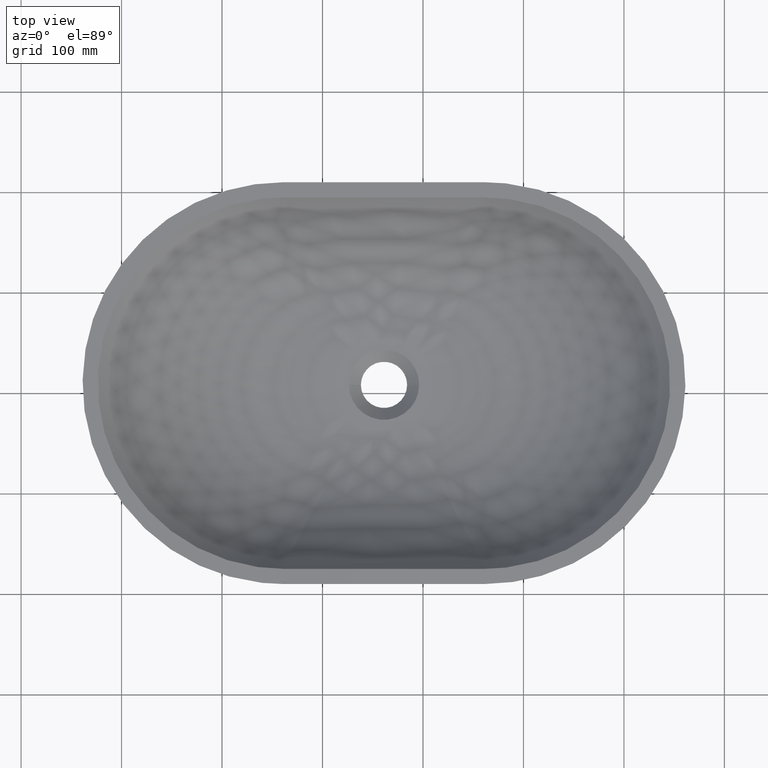
[diagram: clean part render]
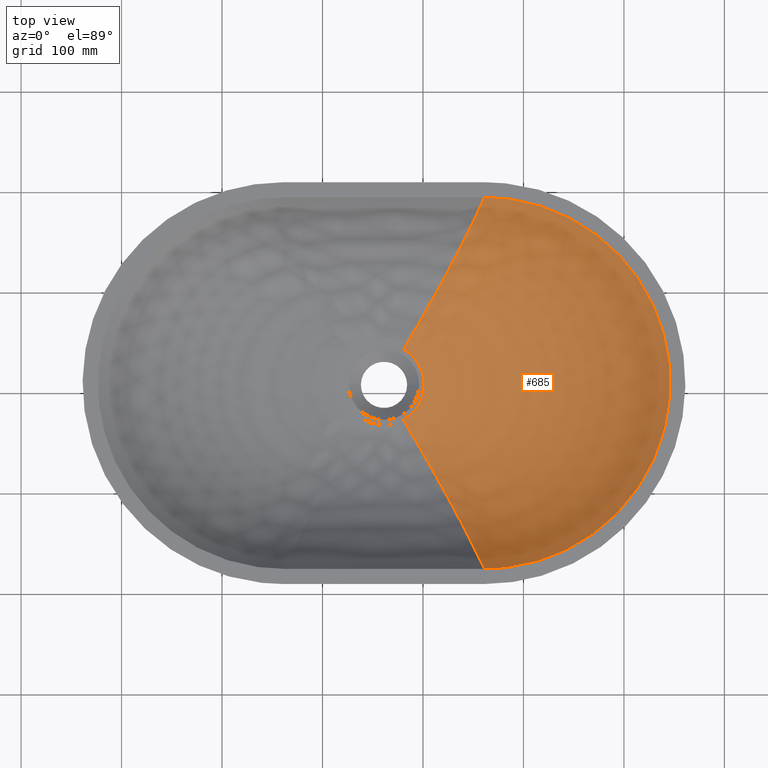
[diagram: same view with one face highlighted and labeled with its STEP entity id]
A machine part, top view. The second image highlights one B-rep face of the part: STEP entity #685.
In plain terms, the highlighted face is a freeform B-spline surface patch.
Its self-contained STEP definition (entity closure, byte-faithful):
#9 = CARTESIAN_POINT ( 'NONE',  ( 196.6014776786418800, 27.19450150109053900, 27.38179570953521100 ) ) ;
#13 = CARTESIAN_POINT ( 'NONE',  ( 197.4111516402810800, 25.57470586209854000, 27.38179570953520100 ) ) ;
#19 = CARTESIAN_POINT ( 'NONE',  ( 185.6887685744725000, -23.15208942729236700, 27.38179570953520800 ) ) ;
#21 = CARTESIAN_POINT ( 'NONE',  ( 183.7565446814714100, -24.55060546163884900, 27.38179570953520400 ) ) ;
#24 = CARTESIAN_POINT ( 'NONE',  ( 184.8060584103677100, -23.80402265204842000, 27.38179570953520800 ) ) ;
#28 = CARTESIAN_POINT ( 'NONE',  ( 198.1975356452472000, 23.69148438487925600, 27.38179570953521100 ) ) ;
#42 = CARTESIAN_POINT ( 'NONE',  ( 379.2194499832172600, 152.7235384807863500, 115.2427286380643900 ) ) ;
#47 = CARTESIAN_POINT ( 'NONE',  ( 182.5078206989634900, -25.38377603097045600, 27.38179570953520400 ) ) ;
#55 = CARTESIAN_POINT ( 'NONE',  ( 192.7707658098549900, -16.19590271109590100, 27.38179570953520400 ) ) ;
#58 = CARTESIAN_POINT ( 'NONE',  ( 261.1448278554648800, 193.3659434360993400, 115.1817957095353500 ) ) ;
#63 = CARTESIAN_POINT ( 'NONE',  ( 192.3389698053424600, -16.61992977274289300, 27.38179570953521500 ) ) ;
#65 = CARTESIAN_POINT ( 'NONE',  ( 200.6447708169336900, 1.824552117183471300, 27.38179570953520400 ) ) ;
#72 = CARTESIAN_POINT ( 'NONE',  ( 197.5197906649049200, 25.46918186683544100, 27.38179570953519700 ) ) ;
#74 = CARTESIAN_POINT ( 'NONE',  ( 389.3046865872454400, -35.32089418878769700, 54.30835634986095100 ) ) ;
#78 = CARTESIAN_POINT ( 'NONE',  ( 293.0523801231298600, -52.03174118988258100, 25.02137870701792700 ) ) ;
#94 = CARTESIAN_POINT ( 'NONE',  ( 259.6596879334414300, -139.4725213121279200, 54.30835634986097200 ) ) ;
#102 = CARTESIAN_POINT ( 'NONE',  ( 197.5198834027187600, -8.495078744145454100, 27.38179570953520400 ) ) ;
#123 = EDGE_CURVE ( 'NONE', #1524, #700, #1468, .T. ) ;
#147 = CARTESIAN_POINT ( 'NONE',  ( 180.6530092009378200, 43.43777836800070000, 27.38179570953520800 ) ) ;
#149 = CARTESIAN_POINT ( 'NONE',  ( 200.5761639955111100, 0.8717913495240085000, 27.38179570953520400 ) ) ;
#161 = CARTESIAN_POINT ( 'NONE',  ( 198.2815829386798000, 23.48531775288084200, 27.38179570953520400 ) ) ;
#162 = CARTESIAN_POINT ( 'NONE',  ( 220.4383936021591500, -89.42368401091738400, 25.02137870701793100 ) ) ;
#172 = CARTESIAN_POINT ( 'NONE',  ( 205.5522561176397300, 85.74235568824542500, 25.79786457957205300 ) ) ;
#180 = CARTESIAN_POINT ( 'NONE',  ( 200.9149258099501500, 13.24943260209434100, 27.38179570953520100 ) ) ;
#187 = CARTESIAN_POINT ( 'NONE',  ( 186.2049054703495600, 39.71304414877115400, 27.38179570953520400 ) ) ;
#190 = CARTESIAN_POINT ( 'NONE',  ( 200.7627162822613200, 2.586894052209324400, 27.38179570953520800 ) ) ;
#193 = CARTESIAN_POINT ( 'NONE',  ( 200.3713623234217800, 0.3073877213286375600, 27.38179570953520400 ) ) ;
#200 = CARTESIAN_POINT ( 'NONE',  ( 200.8169993195679700, 2.969004953996856200, 27.38179570953520800 ) ) ;
#214 = CARTESIAN_POINT ( 'NONE',  ( 187.3605936581501800, 38.89741619271493500, 27.38179570953521500 ) ) ;
#227 = EDGE_LOOP ( 'NONE', ( #1410, #557, #993, #508 ) ) ;
#231 = CARTESIAN_POINT ( 'NONE',  ( 439.1169840143039700, -46.00775472636006900, 115.2427286380643800 ) ) ;
#245 = CARTESIAN_POINT ( 'NONE',  ( 200.0726963640857200, -0.9801483764951626200, 27.38179570953521100 ) ) ;
#255 = CARTESIAN_POINT ( 'NONE',  ( 279.3422297902220600, -176.1039418566433000, 115.2427286380643900 ) ) ;
#287 = CARTESIAN_POINT ( 'NONE',  ( 259.6622617641647300, 156.4450043900232900, 54.30835634986096500 ) ) ;
#290 = CARTESIAN_POINT ( 'NONE',  ( 199.3152058214651300, -3.974982978294283600, 27.38179570953521100 ) ) ;
#291 = VERTEX_POINT ( 'NONE', #1472 ) ;
#294 = B_SPLINE_CURVE_WITH_KNOTS ( 'NONE', 3,
 ( #147, #172, #1056, #1160, #1243, #58 ),
 .UNSPECIFIED., .F., .F.,
 ( 4, 2, 4 ),
 ( 0.0000000000000000000, 0.6712624762246683900, 1.000000000000000000 ),
 .UNSPECIFIED. ) ;
#296 = CARTESIAN_POINT ( 'NONE',  ( 195.2956372939060300, -12.59114986568220800, 27.38179570953521100 ) ) ;
#300 = CARTESIAN_POINT ( 'NONE',  ( 323.8246753876478000, -118.7234972144845500, 54.30835634986110700 ) ) ;
#304 = CARTESIAN_POINT ( 'NONE',  ( 265.9041877506471100, -176.3919539004494700, 115.1817957095352400 ) ) ;
#314 = CARTESIAN_POINT ( 'NONE',  ( 183.5971306888304200, 41.67277403727020900, 27.38179570953520800 ) ) ;
#318 = CARTESIAN_POINT ( 'NONE',  ( 180.6530092009378700, -26.46353534714632300, 27.38179570953520800 ) ) ;
#329 = CARTESIAN_POINT ( 'NONE',  ( 180.6530092009378200, 43.43777836800070000, 27.38179570953520800 ) ) ;
#334 = CARTESIAN_POINT ( 'NONE',  ( 180.6530092009378200, 43.43777836800070000, 27.38179570953520800 ) ) ;
#347 = CARTESIAN_POINT ( 'NONE',  ( 425.1962089026555400, -79.18575149508822600, 115.1817957095352200 ) ) ;
#350 = CARTESIAN_POINT ( 'NONE',  ( 189.6575093727617500, -19.63638992750179900, 27.38179570953520400 ) ) ;
#352 = CARTESIAN_POINT ( 'NONE',  ( 181.4983203643700400, -25.99302798149500000, 27.38179570953521100 ) ) ;
#358 = CARTESIAN_POINT ( 'NONE',  ( 362.5495875228631900, 102.2134134446983000, 54.30835634986096500 ) ) ;
#366 = CARTESIAN_POINT ( 'NONE',  ( 184.3711085017826000, -24.11875589118188800, 27.38179570953520100 ) ) ;
#396 = CARTESIAN_POINT ( 'NONE',  ( 185.2886836203347800, 40.42013146573546600, 27.38179570953520100 ) ) ;
#409 = CARTESIAN_POINT ( 'NONE',  ( 196.1418425925184600, -11.00220248208325400, 27.38179570953520400 ) ) ;
#424 = CARTESIAN_POINT ( 'NONE',  ( 279.3225402225500600, -176.0673003552144600, 115.1817957095352500 ) ) ;
#438 = CARTESIAN_POINT ( 'NONE',  ( 425.2433722258715000, -79.20295678382918000, 115.2427286380643600 ) ) ;
#443 = CARTESIAN_POINT ( 'NONE',  ( 227.7312803196107900, 106.0032753629035700, 25.02137870701792400 ) ) ;
#468 = CARTESIAN_POINT ( 'NONE',  ( 183.5527860050896700, 41.74551480386342900, 27.38179570953520100 ) ) ;
#485 = CARTESIAN_POINT ( 'NONE',  ( 190.0864540001017000, -19.27255901435651000, 27.38179570953521100 ) ) ;
#494 = CARTESIAN_POINT ( 'NONE',  ( 217.7585402813497200, 106.4812034904919400, 25.02137870701793100 ) ) ;
#505 = CARTESIAN_POINT ( 'NONE',  ( 184.6759408692024900, -23.89901503450563400, 27.38179570953520400 ) ) ;
#508 = ORIENTED_EDGE ( 'NONE', *, *, #649, .F. ) ;
#510 = CARTESIAN_POINT ( 'NONE',  ( 200.0380332305060200, 18.05945750227263200, 27.38179570953520400 ) ) ;
#517 = CARTESIAN_POINT ( 'NONE',  ( 262.1700796277140200, 95.48749348739411900, 25.02137870701792000 ) ) ;
#530 = CARTESIAN_POINT ( 'NONE',  ( 200.8612603138843200, 3.298482154612084800, 27.38179570953520800 ) ) ;
#533 = CARTESIAN_POINT ( 'NONE',  ( 446.3857256865616700, 26.97803776902222200, 115.2427286380643800 ) ) ;
#534 = CARTESIAN_POINT ( 'NONE',  ( 383.0494266036511700, -131.7894746285706700, 115.2427286380643800 ) ) ;
#535 = CARTESIAN_POINT ( 'NONE',  ( 196.7900977674558800, -9.808557677217605100, 27.38179570953519000 ) ) ;
#539 = CARTESIAN_POINT ( 'NONE',  ( 378.0964865647901000, -62.00286483470746600, 54.30835634986097200 ) ) ;
#556 = CARTESIAN_POINT ( 'NONE',  ( 197.9336127222025500, -7.344268548536906100, 27.38179570953521100 ) ) ;
#557 = ORIENTED_EDGE ( 'NONE', *, *, #123, .F. ) ;
#561 = CARTESIAN_POINT ( 'NONE',  ( 188.9308521093734900, -20.33937161964875200, 27.38179570953520400 ) ) ;
#566 = CARTESIAN_POINT ( 'NONE',  ( 227.7298563202850800, -89.02967392048088900, 25.02137870701793100 ) ) ;
#570 = CARTESIAN_POINT ( 'NONE',  ( 261.1614004858080300, -176.4286436027718100, 115.2427286380643800 ) ) ;
#582 = CARTESIAN_POINT ( 'NONE',  ( 248.5789202161286400, -139.5737906297593700, 54.30835634986105700 ) ) ;
#596 = CARTESIAN_POINT ( 'NONE',  ( 362.5503774578930900, -85.24075731403452500, 54.30835634986103600 ) ) ;
#603 = CARTESIAN_POINT ( 'NONE',  ( 389.3022479116495400, 52.29376907120254000, 54.30835634986104300 ) ) ;
#625 = EDGE_CURVE ( 'NONE', #700, #291, #294, .T. ) ;
#628 = CARTESIAN_POINT ( 'NONE',  ( 199.7267865206681300, -2.266310874729762200, 27.38179570953520400 ) ) ;
#647 = CARTESIAN_POINT ( 'NONE',  ( 199.6357805134790100, -2.590655510195713200, 27.38179570953519400 ) ) ;
#648 = CARTESIAN_POINT ( 'NONE',  ( 279.3454003649030700, 193.0762527380919900, 115.2427286380643800 ) ) ;
#649 = EDGE_CURVE ( 'NONE', #291, #1388, #815, .T. ) ;
#658 = CARTESIAN_POINT ( 'NONE',  ( 186.7250462988745600, -22.33167545168174300, 27.38179570953520400 ) ) ;
#661 = CARTESIAN_POINT ( 'NONE',  ( 201.0371291942463800, 12.12911935696265800, 27.38179570953521100 ) ) ;
#669 = CARTESIAN_POINT ( 'NONE',  ( 186.9376532413858700, -22.23953747951132000, 27.38179570953521100 ) ) ;
#674 = CARTESIAN_POINT ( 'NONE',  ( 193.5789856733868200, 31.97993811877862700, 27.38179570953520800 ) ) ;
#680 = CARTESIAN_POINT ( 'NONE',  ( 217.7461699221338200, -89.48594285333409500, 25.02216563029785600 ) ) ;
#685 = ADVANCED_FACE ( 'NONE', ( #849 ), #1161, .F. ) ;
#690 = CARTESIAN_POINT ( 'NONE',  ( 261.1448278554647100, -176.3917004152449700, 115.1817957095353900 ) ) ;
#692 = CARTESIAN_POINT ( 'NONE',  ( 439.0648198194157300, 62.96958976007968500, 115.1817957095351900 ) ) ;
#700 = VERTEX_POINT ( 'NONE', #334 ) ;
#703 = CARTESIAN_POINT ( 'NONE',  ( 309.7899828680299900, 36.66707738275332700, 25.02137870701792400 ) ) ;
#708 = CARTESIAN_POINT ( 'NONE',  ( 293.0529928756049000, 69.00341743924133200, 25.02137870701792000 ) ) ;
#713 = CARTESIAN_POINT ( 'NONE',  ( 446.3344963352358300, 26.97441046883320900, 115.1817957095352400 ) ) ;
#727 = CARTESIAN_POINT ( 'NONE',  ( 200.5759918676284000, 16.10237721356336800, 27.38179570953520100 ) ) ;
#737 = CARTESIAN_POINT ( 'NONE',  ( 200.8818420545889300, 13.51592951334062900, 27.38179570953521100 ) ) ;
#743 = CARTESIAN_POINT ( 'NONE',  ( 358.1473053572506700, -149.8167725658331100, 115.1817957095352200 ) ) ;
#746 = CARTESIAN_POINT ( 'NONE',  ( 268.6868102510666200, -74.17294108672561500, 25.02137870701792700 ) ) ;
#747 = CARTESIAN_POINT ( 'NONE',  ( 197.4741953974441600, -8.379635219901972600, 27.38179570953520400 ) ) ;
#750 = CARTESIAN_POINT ( 'NONE',  ( 200.8952048879166100, 13.40933867330464000, 27.38179570953520800 ) ) ;
#754 = CARTESIAN_POINT ( 'NONE',  ( 395.1707953075338100, -6.376679067864068400, 54.30835634986106400 ) ) ;
#757 = CARTESIAN_POINT ( 'NONE',  ( 343.9709374917975400, -104.2467259528659300, 54.30835634986094400 ) ) ;
#774 = CARTESIAN_POINT ( 'NONE',  ( 189.3329063772969200, 36.92136624550906300, 27.38179570953520800 ) ) ;
#775 = B_SPLINE_CURVE_WITH_KNOTS ( 'NONE', 3,
 ( #318, #680, #1527, #1525 ),
 .UNSPECIFIED., .F., .F.,
 ( 4, 4 ),
 ( 0.0000000000000000000, 1.000000000000000000 ),
 .UNSPECIFIED. ) ;
#779 = CARTESIAN_POINT ( 'NONE',  ( 194.4948221238040800, 30.68724613975218700, 27.38179570953521100 ) ) ;
#784 = CARTESIAN_POINT ( 'NONE',  ( 199.7865637781691500, -2.049774058058631000, 27.38179570953521500 ) ) ;
#794 = CARTESIAN_POINT ( 'NONE',  ( 190.1226637806337600, 36.12386546523632800, 27.38179570953520100 ) ) ;
#806 = CARTESIAN_POINT ( 'NONE',  ( 199.6131475044422000, 19.67530492797540000, 27.38179570953521100 ) ) ;
#807 = CARTESIAN_POINT ( 'NONE',  ( 181.4038921278672900, -26.04558753911360500, 27.38179570953521500 ) ) ;
#810 = CARTESIAN_POINT ( 'NONE',  ( 185.0223280056100600, 40.61904187335757400, 27.38179570953520100 ) ) ;
#815 = B_SPLINE_CURVE_WITH_KNOTS ( 'NONE', 3,
 ( #1367, #890, #1082, #1202, #1140, #1269, #1251, #1363, #692, #713, #1079, #1330, #347, #1457, #925, #743, #1205, #905, #424, #304, #690 ),
 .UNSPECIFIED., .F., .F.,
 ( 4, 1, 1, 1, 1, 1, 1, 1, 1, 1, 1, 1, 1, 1, 1, 1, 1, 1, 4 ),
 ( 0.0000000000000000000, 0.04133533060371028000, 0.08267066120742062900, 0.1240059918111309800, 0.1653413224148412600, 0.1928982094839814300, 0.2204550965531216500, 0.2480119836222618200, 0.2755688706914020700, 0.3031257577605422400, 0.3306826448296824000, 0.3582395318988226300, 0.3857964189679628500, 0.4133533060371030200, 0.4409101931062431900, 0.4684670801753834100, 0.4960239672445236300, 0.5373592978482338900, 0.5786946284519441900 ),
 .UNSPECIFIED. ) ;
#822 = CARTESIAN_POINT ( 'NONE',  ( 194.7628178722373800, -13.34796426136996500, 27.38179570953520800 ) ) ;
#825 = CARTESIAN_POINT ( 'NONE',  ( 199.4140523168082400, -3.344235532831059100, 27.38179570953520400 ) ) ;
#828 = CARTESIAN_POINT ( 'NONE',  ( 198.0235799684431900, -7.133813220683200600, 27.38179570953520400 ) ) ;
#834 = CARTESIAN_POINT ( 'NONE',  ( 201.0888144347105100, 5.056072847339557100, 27.38179570953520400 ) ) ;
#836 = CARTESIAN_POINT ( 'NONE',  ( 201.1991881648812100, 9.346399119737737800, 27.38179570953519700 ) ) ;
#841 = CARTESIAN_POINT ( 'NONE',  ( 201.1991548304705200, 6.768566291806132000, 27.38179570953520800 ) ) ;
#844 = CARTESIAN_POINT ( 'NONE',  ( 189.5720474390210800, 36.68410459989005500, 27.38179570953520100 ) ) ;
#849 = FACE_OUTER_BOUND ( 'NONE', #227, .T. ) ;
#853 = CARTESIAN_POINT ( 'NONE',  ( 201.1578188534704700, 10.63277970569477500, 27.38179570953520400 ) ) ;
#856 = CARTESIAN_POINT ( 'NONE',  ( 200.8752364340118400, 13.56780015207234900, 27.38179570953520800 ) ) ;
#858 = CARTESIAN_POINT ( 'NONE',  ( 309.7899094286735200, -19.69369558392305900, 25.02137870701792700 ) ) ;
#866 = CARTESIAN_POINT ( 'NONE',  ( 406.0112118811169400, -108.1202913474504900, 115.2427286380643600 ) ) ;
#869 = CARTESIAN_POINT ( 'NONE',  ( 446.3823993092374300, -10.00275878739502400, 115.2427286380643400 ) ) ;
#880 = CARTESIAN_POINT ( 'NONE',  ( 425.2437389192687100, 96.18294949087230300, 115.2427286380643800 ) ) ;
#886 = CARTESIAN_POINT ( 'NONE',  ( 200.8538747076187300, 3.242321762003865300, 27.38179570953520800 ) ) ;
#890 = CARTESIAN_POINT ( 'NONE',  ( 265.9041880337533100, 193.3661968537024900, 115.1817957095352400 ) ) ;
#896 = CARTESIAN_POINT ( 'NONE',  ( 199.2224022879696300, 20.96323281230361200, 27.38179570953520400 ) ) ;
#905 = CARTESIAN_POINT ( 'NONE',  ( 305.8180387162530000, -171.7082193614270700, 115.1817957095352400 ) ) ;
#907 = CARTESIAN_POINT ( 'NONE',  ( 217.7585402813500100, -89.50696046963756200, 25.02137870701793100 ) ) ;
#912 = CARTESIAN_POINT ( 'NONE',  ( 244.5946707096401300, -139.4953298881793800, 54.30835634986100800 ) ) ;
#917 = CARTESIAN_POINT ( 'NONE',  ( 190.5928202152297500, -18.66859155576897700, 27.38179570953520400 ) ) ;
#925 = CARTESIAN_POINT ( 'NONE',  ( 383.0103344354116600, -131.7619236983447600, 115.1817957095352400 ) ) ;
#927 = CARTESIAN_POINT ( 'NONE',  ( 395.1742022714312800, 23.35184081782544000, 54.30835634986088000 ) ) ;
#944 = CARTESIAN_POINT ( 'NONE',  ( 313.4982644795584300, 142.1473177360400100, 54.30835634986102900 ) ) ;
#967 = CARTESIAN_POINT ( 'NONE',  ( 248.5792036818253300, 156.5479659543870000, 54.30835634986102200 ) ) ;
#978 = CARTESIAN_POINT ( 'NONE',  ( 439.1146495699926500, 62.98027951517251900, 115.2427286380643400 ) ) ;
#983 = CARTESIAN_POINT ( 'NONE',  ( 200.9586779989895700, 12.87617975784275400, 27.38179570953519700 ) ) ;
#993 = ORIENTED_EDGE ( 'NONE', *, *, #1354, .T. ) ;
#1002 = CARTESIAN_POINT ( 'NONE',  ( 180.6530092009378700, -26.46353534714632300, 27.38179570953520800 ) ) ;
#1003 = CARTESIAN_POINT ( 'NONE',  ( 255.8554105091100400, -81.08400325095415400, 25.02137870701792700 ) ) ;
#1012 = CARTESIAN_POINT ( 'NONE',  ( 180.6530092009378200, 43.43777836800070000, 27.38179570953521100 ) ) ;
#1017 = CARTESIAN_POINT ( 'NONE',  ( 192.4782352369080300, -16.44622379385872400, 27.38179570953521100 ) ) ;
#1024 = CARTESIAN_POINT ( 'NONE',  ( 199.9566465915439400, 18.38010190805118400, 27.38179570953520800 ) ) ;
#1029 = CARTESIAN_POINT ( 'NONE',  ( 345.4405783898705500, 174.8753092049148300, 115.2427286380643800 ) ) ;
#1033 = CARTESIAN_POINT ( 'NONE',  ( 192.7576191240098900, 33.06587221095658400, 27.38179570953520800 ) ) ;
#1035 = CARTESIAN_POINT ( 'NONE',  ( 305.8425874350387500, -171.7438259838578500, 115.2427286380643800 ) ) ;
#1040 = CARTESIAN_POINT ( 'NONE',  ( 309.1507820422887700, 188.1728444841104400, 115.2427286380643900 ) ) ;
#1056 = CARTESIAN_POINT ( 'NONE',  ( 225.8272646113798600, 122.1683338336006700, 38.46453124623863600 ) ) ;
#1059 = CARTESIAN_POINT ( 'NONE',  ( 200.7548672419667600, 14.49770678458741500, 27.38179570953520400 ) ) ;
#1062 = CARTESIAN_POINT ( 'NONE',  ( 201.2260872538069500, 5.925180911653694900, 27.38179570953520400 ) ) ;
#1072 = CARTESIAN_POINT ( 'NONE',  ( 191.4576509502985900, 34.88818144069497900, 27.38179570953519700 ) ) ;
#1077 = CARTESIAN_POINT ( 'NONE',  ( 188.6928638043057400, -20.56644444955136900, 27.38179570953520800 ) ) ;
#1079 = CARTESIAN_POINT ( 'NONE',  ( 446.3311698784637000, -9.999131604614058600, 115.1817957095351900 ) ) ;
#1082 = CARTESIAN_POINT ( 'NONE',  ( 279.3257102002136200, 193.0396114092008300, 115.1817957095352400 ) ) ;
#1090 = CARTESIAN_POINT ( 'NONE',  ( 185.0678027613790000, 40.58527842419390900, 27.38179570953520800 ) ) ;
#1095 = CARTESIAN_POINT ( 'NONE',  ( 192.0623892055198800, 33.94828256210225000, 27.38179570953520800 ) ) ;
#1115 = CARTESIAN_POINT ( 'NONE',  ( 261.1448278554647100, -176.3917004152449700, 115.1817957095353900 ) ) ;
#1116 = CARTESIAN_POINT ( 'NONE',  ( 244.5946707096398700, 156.4695729090337600, 54.30835634986100800 ) ) ;
#1119 = CARTESIAN_POINT ( 'NONE',  ( 302.7880371200877200, -36.92800928836876300, 25.02137870701793100 ) ) ;
#1120 = CARTESIAN_POINT ( 'NONE',  ( 333.2148645694177800, -162.4973830247429600, 115.2427286380643800 ) ) ;
#1125 = CARTESIAN_POINT ( 'NONE',  ( 313.4535065031587900, 18.04257563260727400, 25.02137870701793100 ) ) ;
#1130 = CARTESIAN_POINT ( 'NONE',  ( 313.4534708008882300, -1.068007605858654100, 25.02137870701792700 ) ) ;
#1132 = CARTESIAN_POINT ( 'NONE',  ( 198.6913439419372800, 22.44044034649935400, 27.38179570953520800 ) ) ;
#1137 = CARTESIAN_POINT ( 'NONE',  ( 281.3025702341002400, -136.1472725605145500, 54.30835634986110000 ) ) ;
#1140 = CARTESIAN_POINT ( 'NONE',  ( 345.4086248373045000, 174.8425716759024100, 115.1817957095352400 ) ) ;
#1148 = CARTESIAN_POINT ( 'NONE',  ( 182.1550870197657200, 42.60170910958645200, 27.38179570953520400 ) ) ;
#1160 = CARTESIAN_POINT ( 'NONE',  ( 249.1426898363959000, 167.6756875922566800, 78.56399370194640100 ) ) ;
#1161 = B_SPLINE_SURFACE_WITH_KNOTS ( 'NONE', 3, 3, ( 
 ( #1424, #907, #912, #570 ),
 ( #352, #162, #582, #1454 ),
 ( #1432, #566, #94, #255 ),
 ( #669, #1405, #1137, #1035 ),
 ( #485, #1003, #1538, #1120 ),
 ( #55, #746, #300, #1451 ),
 ( #296, #1478, #757, #534 ),
 ( #102, #78, #596, #866 ),
 ( #290, #1119, #539, #438 ),
 ( #149, #858, #74, #231 ),
 ( #1062, #1130, #754, #869 ),
 ( #1306, #1125, #927, #533 ),
 ( #727, #703, #603, #978 ),
 ( #1511, #1458, #1191, #880 ),
 ( #72, #708, #358, #1173 ),
 ( #1167, #1421, #1407, #42 ),
 ( #1072, #517, #944, #1029 ),
 ( #214, #1232, #1545, #1040 ),
 ( #468, #443, #287, #648 ),
 ( #1335, #1430, #967, #1482 ),
 ( #1012, #494, #1116, #1497 ) ),
 .UNSPECIFIED., .F., .F., .F.,
 ( 4, 1, 1, 1, 1, 1, 1, 1, 1, 1, 1, 1, 1, 1, 1, 1, 1, 1, 4 ),
 ( 4, 4 ),
 ( 0.0000000000000000000, 0.07142857142857142500, 0.1428571428571428500, 0.1904761904761904700, 0.2380952380952380800, 0.2857142857142857000, 0.3333333333333333100, 0.3809523809523809300, 0.4285714285714285500, 0.4761904761904761600, 0.5238095238095237200, 0.5714285714285714000, 0.6190476190476189600, 0.6666666666666666300, 0.7142857142857141900, 0.7857142857142855900, 0.8571428571428571000, 0.9285714285714286000, 1.000000000000000000 ),
 ( 0.0000000000000000000, 0.9992401303679722100 ),
 .UNSPECIFIED. ) ;
#1167 = CARTESIAN_POINT ( 'NONE',  ( 194.9251723252385800, 30.24895763689873000, 27.38179570953521500 ) ) ;
#1173 = CARTESIAN_POINT ( 'NONE',  ( 406.0107227344238400, 125.0918728369033800, 115.2427286380643600 ) ) ;
#1191 = CARTESIAN_POINT ( 'NONE',  ( 378.0970396123015600, 78.98217328683313100, 54.30835634986100800 ) ) ;
#1196 = CARTESIAN_POINT ( 'NONE',  ( 189.1727761962352800, 37.07890937799701400, 27.38179570953520400 ) ) ;
#1202 = CARTESIAN_POINT ( 'NONE',  ( 309.1256268442472200, 188.1373668603124300, 115.1817957095352500 ) ) ;
#1205 = CARTESIAN_POINT ( 'NONE',  ( 333.1852031347311300, -162.4637020082662400, 115.1817957095352400 ) ) ;
#1209 = CARTESIAN_POINT ( 'NONE',  ( 187.8847485334033500, -21.31598320127682200, 27.38179570953519000 ) ) ;
#1232 = CARTESIAN_POINT ( 'NONE',  ( 243.4070174597280500, 102.9464048901616700, 25.02137870701793800 ) ) ;
#1239 = CARTESIAN_POINT ( 'NONE',  ( 199.8739825910189700, 18.69848401579189500, 27.38179570953520800 ) ) ;
#1243 = CARTESIAN_POINT ( 'NONE',  ( 255.6982875608265100, 181.2257644696010700, 95.16399370194760400 ) ) ;
#1251 = CARTESIAN_POINT ( 'NONE',  ( 405.9672464215202000, 125.0689875127428900, 115.1817957095352200 ) ) ;
#1252 = CARTESIAN_POINT ( 'NONE',  ( 198.4476355950346500, 23.06809179025741200, 27.38179570953521100 ) ) ;
#1259 = CARTESIAN_POINT ( 'NONE',  ( 200.5420063811430700, 15.80217635767287200, 27.38179570953520400 ) ) ;
#1269 = CARTESIAN_POINT ( 'NONE',  ( 379.1810891621314600, 152.6952077585169400, 115.1817957095352500 ) ) ;
#1273 = CARTESIAN_POINT ( 'NONE',  ( 188.3773325744435900, 37.84913038555262700, 27.38179570953520800 ) ) ;
#1278 = CARTESIAN_POINT ( 'NONE',  ( 185.5961589681054100, 40.18686273691653100, 27.38179570953520400 ) ) ;
#1280 = CARTESIAN_POINT ( 'NONE',  ( 193.1721563109251500, 32.52421745444802800, 27.38179570953520400 ) ) ;
#1290 = CARTESIAN_POINT ( 'NONE',  ( 192.0551707817834000, -16.96793710404569900, 27.38179570953520800 ) ) ;
#1306 = CARTESIAN_POINT ( 'NONE',  ( 201.2263107752296500, 11.04912475463105700, 27.38179570953521100 ) ) ;
#1316 = CARTESIAN_POINT ( 'NONE',  ( 191.1943785875499800, 34.97687268309115900, 27.38179570953520100 ) ) ;
#1327 = CARTESIAN_POINT ( 'NONE',  ( 198.4564783497039900, -6.097188091402071700, 27.38179570953520100 ) ) ;
#1330 = CARTESIAN_POINT ( 'NONE',  ( 439.0671543671018600, -45.99706462106902200, 115.1817957095352400 ) ) ;
#1332 = CARTESIAN_POINT ( 'NONE',  ( 200.2185449134988500, 17.30946289295840800, 27.38179570953520100 ) ) ;
#1335 = CARTESIAN_POINT ( 'NONE',  ( 181.4983203643700200, 42.96727100234939200, 27.38179570953521100 ) ) ;
#1354 = EDGE_CURVE ( 'NONE', #1524, #1388, #775, .T. ) ;
#1363 = CARTESIAN_POINT ( 'NONE',  ( 425.1965757820983100, 96.16574351693498100, 115.1817957095352400 ) ) ;
#1365 = CARTESIAN_POINT ( 'NONE',  ( 189.0908742091632500, 37.15880246085357900, 27.38179570953520400 ) ) ;
#1367 = CARTESIAN_POINT ( 'NONE',  ( 261.1448278554648800, 193.3659434360993400, 115.1817957095353500 ) ) ;
#1370 = CARTESIAN_POINT ( 'NONE',  ( 184.9347884352356500, -23.70952017412908200, 27.38179570953520400 ) ) ;
#1374 = CARTESIAN_POINT ( 'NONE',  ( 185.1562437362941300, 40.51932365696063700, 27.38179570953520800 ) ) ;
#1388 = VERTEX_POINT ( 'NONE', #1115 ) ;
#1389 = CARTESIAN_POINT ( 'NONE',  ( 199.9014945013229000, 18.59369109960219300, 27.38179570953520400 ) ) ;
#1405 = CARTESIAN_POINT ( 'NONE',  ( 241.6671055760723200, -86.31097137434544200, 25.02137870701793100 ) ) ;
#1407 = CARTESIAN_POINT ( 'NONE',  ( 340.8720580100358000, 124.4012189914564200, 54.30835634986104300 ) ) ;
#1409 = CARTESIAN_POINT ( 'NONE',  ( 198.9330725372151400, -4.838499070960870600, 27.38179570953521100 ) ) ;
#1410 = ORIENTED_EDGE ( 'NONE', *, *, #625, .F. ) ;
#1413 = CARTESIAN_POINT ( 'NONE',  ( 199.8165389835635600, -1.939355186265697900, 27.38179570953521500 ) ) ;
#1418 = CARTESIAN_POINT ( 'NONE',  ( 195.2225126893162900, 29.54029839350460000, 27.38179570953520400 ) ) ;
#1421 = CARTESIAN_POINT ( 'NONE',  ( 279.4408410887440900, 83.57523708207591500, 25.02137870701793800 ) ) ;
#1424 = CARTESIAN_POINT ( 'NONE',  ( 180.6530092009378700, -26.46353534714631900, 27.38179570953521100 ) ) ;
#1430 = CARTESIAN_POINT ( 'NONE',  ( 220.4377549618946800, 106.3981065933243700, 25.02137870701793100 ) ) ;
#1432 = CARTESIAN_POINT ( 'NONE',  ( 183.5527077274435600, -24.77146876739121200, 27.38179570953521100 ) ) ;
#1446 = CARTESIAN_POINT ( 'NONE',  ( 200.8392585436943400, 3.132968183536073900, 27.38179570953520800 ) ) ;
#1451 = CARTESIAN_POINT ( 'NONE',  ( 358.1816744210265100, -149.8479061039486200, 115.2427286380643600 ) ) ;
#1454 = CARTESIAN_POINT ( 'NONE',  ( 265.9215365597608000, -176.4288188708316300, 115.2427286380643800 ) ) ;
#1457 = CARTESIAN_POINT ( 'NONE',  ( 405.9677358684787100, -108.0974049491730000, 115.1817957095352200 ) ) ;
#1458 = CARTESIAN_POINT ( 'NONE',  ( 302.7877673848587400, 53.90411632032129300, 25.02137870701793100 ) ) ;
#1459 = CARTESIAN_POINT ( 'NONE',  ( 188.8526678801979400, -20.41437619804202400, 27.38179570953519700 ) ) ;
#1467 = CARTESIAN_POINT ( 'NONE',  ( 187.3975817016504100, 38.73628245045040300, 27.38179570953520400 ) ) ;
#1468 = B_SPLINE_CURVE_WITH_KNOTS ( 'NONE', 3,
 ( #1522, #807, #47, #21, #366, #505, #24, #1531, #1370, #19, #658, #1209, #1515, #1077, #1459, #561, #350, #917, #1493, #1290, #63, #1017, #1488, #822, #409, #535, #747, #1502, #556, #828, #1327, #1409, #825, #647, #628, #784, #1413, #245, #193, #65, #190, #200, #1446, #886, #530, #834, #841, #836, #853, #661, #983, #180, #750, #737, #856, #1059, #1259, #1332, #510, #1024, #1389, #1239, #806, #896, #1132, #1252, #161, #28, #13, #9, #1418, #779, #674, #1280, #1518, #1033, #1095, #1316, #794, #844, #774, #1196, #1365, #1273, #1467, #187, #1278, #396, #1374, #1090, #810, #314, #1148, #329 ),
 .UNSPECIFIED., .F., .F.,
 ( 4, 1, 1, 1, 1, 2, 2, 1, 1, 1, 2, 2, 1, 1, 2, 2, 2, 1, 1, 2, 2, 1, 1, 1, 2, 2, 1, 1, 1, 1, 2, 2, 2, 1, 1, 1, 1, 2, 2, 1, 1, 1, 2, 2, 1, 1, 2, 2, 2, 1, 1, 2, 2, 1, 1, 1, 2, 2, 1, 1, 1, 1, 2, 2, 4 ),
 ( 0.0000000000000000000, 0.03125000000001252500, 0.04687500000001839500, 0.05468750000002133700, 0.05859375000002283600, 0.06054687500002359200, 0.06250000000002434200, 0.09375000000002863000, 0.1093750000000311600, 0.1171875000000320000, 0.1210937500000323900, 0.1250000000000327800, 0.1562500000000348100, 0.1718750000000358300, 0.1796875000000360300, 0.1875000000000361900, 0.2500000000000333100, 0.2812500000000321400, 0.2968750000000314700, 0.3046875000000310300, 0.3125000000000305300, 0.3437500000000293100, 0.3593750000000287000, 0.3671875000000283700, 0.3710937500000283100, 0.3750000000000282600, 0.4062500000000288100, 0.4218750000000291400, 0.4296875000000293100, 0.4335937500000294800, 0.4355468750000295300, 0.4375000000000295900, 0.5000000000000284200, 0.5312500000000278700, 0.5468750000000274200, 0.5546875000000273100, 0.5585937500000273100, 0.5605468750000273100, 0.5625000000000273100, 0.5937500000000244200, 0.6093750000000230900, 0.6171875000000224300, 0.6210937500000220900, 0.6250000000000217600, 0.6562500000000184300, 0.6718750000000166500, 0.6796875000000159900, 0.6875000000000152100, 0.7500000000000098800, 0.7812500000000075500, 0.7968750000000062200, 0.8046875000000052200, 0.8125000000000042200, 0.8437500000000002200, 0.8593749999999981100, 0.8671874999999974500, 0.8710937499999974500, 0.8749999999999974500, 0.9062499999999924500, 0.9218749999999899000, 0.9296874999999886800, 0.9335937499999884500, 0.9355468749999887900, 0.9374999999999891200, 1.000000000000000000 ),
 .UNSPECIFIED. ) ;
#1472 = CARTESIAN_POINT ( 'NONE',  ( 261.1448278554648800, 193.3659434360993400, 115.1817957095353500 ) ) ;
#1478 = CARTESIAN_POINT ( 'NONE',  ( 281.3865598674041200, -64.51431809637021800, 25.02137870701793100 ) ) ;
#1482 = CARTESIAN_POINT ( 'NONE',  ( 265.9215365597608500, 193.4030618916860100, 115.2427286380643800 ) ) ;
#1488 = CARTESIAN_POINT ( 'NONE',  ( 193.7412763675426700, -14.84321099211203800, 27.38179570953521100 ) ) ;
#1493 = CARTESIAN_POINT ( 'NONE',  ( 191.6252765578553300, -17.48613691989111600, 27.38179570953521100 ) ) ;
#1497 = CARTESIAN_POINT ( 'NONE',  ( 261.1614004858080900, 193.4028866236261900, 115.2427286380643800 ) ) ;
#1502 = CARTESIAN_POINT ( 'NONE',  ( 197.7519086515593500, -7.759453412844044000, 27.38179570953520800 ) ) ;
#1511 = CARTESIAN_POINT ( 'NONE',  ( 199.3153705969905000, 20.94954962868818900, 27.38179570953521100 ) ) ;
#1515 = CARTESIAN_POINT ( 'NONE',  ( 188.4522775396828000, -20.79350142302622500, 27.38179570953519700 ) ) ;
#1518 = CARTESIAN_POINT ( 'NONE',  ( 192.8977527300465300, 32.88490778656434800, 27.38179570953520400 ) ) ;
#1522 = CARTESIAN_POINT ( 'NONE',  ( 180.6530092009378700, -26.46353534714632300, 27.38179570953520800 ) ) ;
#1524 = VERTEX_POINT ( 'NONE', #1002 ) ;
#1525 = CARTESIAN_POINT ( 'NONE',  ( 261.1448278554647100, -176.3917004152449700, 115.1817957095353900 ) ) ;
#1527 = CARTESIAN_POINT ( 'NONE',  ( 244.5767761403096800, -139.4619978760339900, 54.28883229696514000 ) ) ;
#1531 = CARTESIAN_POINT ( 'NONE',  ( 184.8926867929189400, -23.74051267938895300, 27.38179570953520800 ) ) ;
#1538 = CARTESIAN_POINT ( 'NONE',  ( 303.5638831024514300, -128.8260914317628800, 54.30835634986088000 ) ) ;
#1545 = CARTESIAN_POINT ( 'NONE',  ( 284.0044948277235900, 152.7052876089224500, 54.30835634986106400 ) ) ;